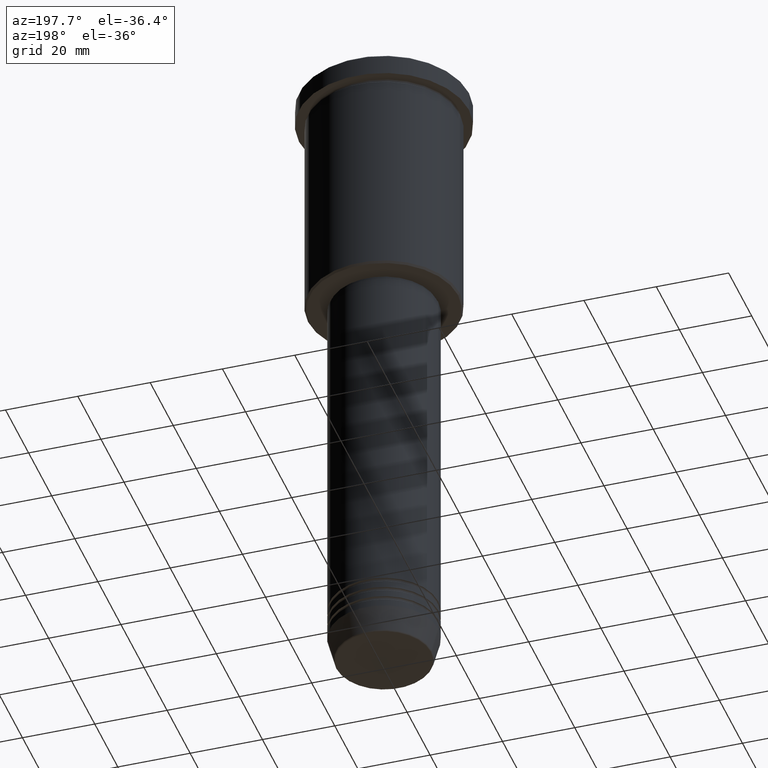
[diagram: clean part render]
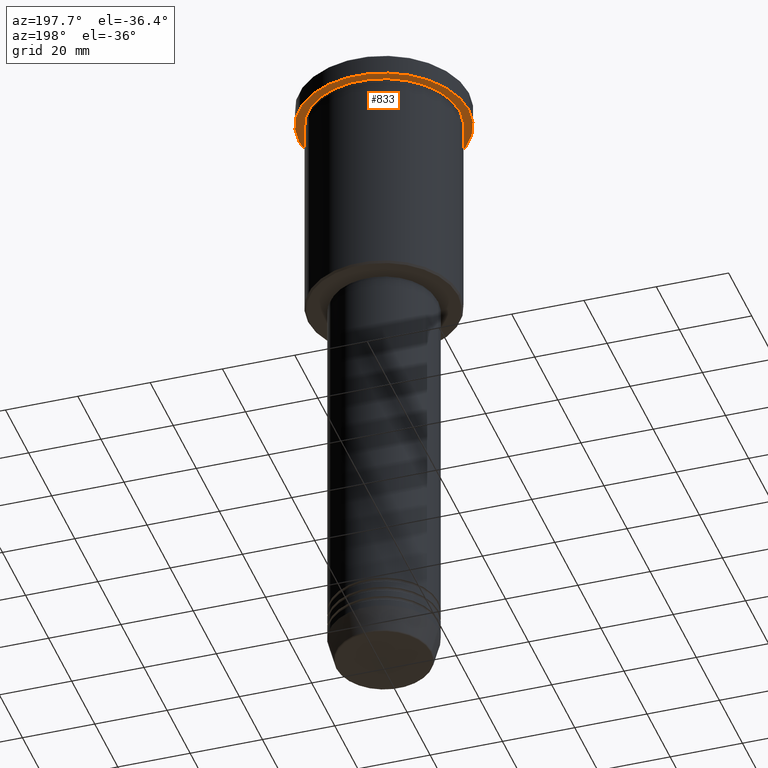
[diagram: same view with one face highlighted and labeled with its STEP entity id]
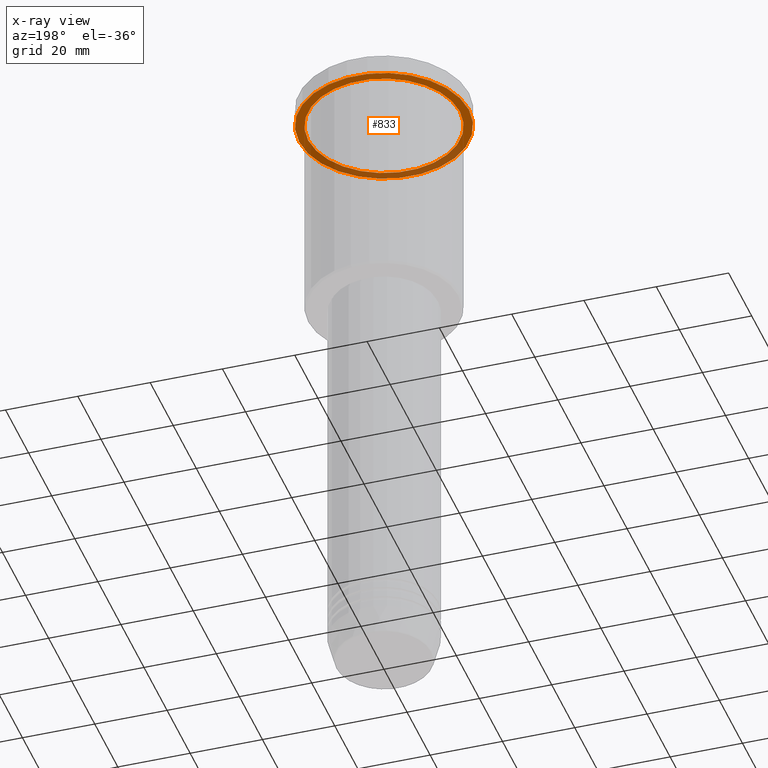
[diagram: x-ray of the same camera — body ghosted, the highlighted face saturated]
A machine part, auxiliary view. The second image highlights one B-rep face of the part: STEP entity #833.
The next image is the same camera in x-ray: the body ghosted, the highlighted face saturated — about 36% of this face is hidden behind the body in this view.
In plain terms, the highlighted planar face has unit normal (0, 0, -1).
Its self-contained STEP definition (entity closure, byte-faithful):
#9 = EDGE_CURVE ( 'NONE', #350, #212, #810, .T. ) ;
#35 = CARTESIAN_POINT ( 'NONE',  ( 21.00000000000000000, 2.571758278209441661E-15, -5.999999999999994671 ) ) ;
#44 = CARTESIAN_POINT ( 'NONE',  ( 0.000000000000000000, 0.000000000000000000, -5.999999999999994671 ) ) ;
#69 = FACE_BOUND ( 'NONE', #435, .T. ) ;
#75 = AXIS2_PLACEMENT_3D ( 'NONE', #641, #106, #546 ) ;
#76 = AXIS2_PLACEMENT_3D ( 'NONE', #1023, #189, #746 ) ;
#94 = DIRECTION ( 'NONE',  ( -1.000000000000000000, 0.000000000000000000, 0.000000000000000000 ) ) ;
#99 = EDGE_CURVE ( 'NONE', #1118, #124, #827, .T. ) ;
#106 = DIRECTION ( 'NONE',  ( -0.000000000000000000, -0.000000000000000000, 1.000000000000000000 ) ) ;
#124 = VERTEX_POINT ( 'NONE', #206 ) ;
#164 = EDGE_LOOP ( 'NONE', ( #942, #1038 ) ) ;
#189 = DIRECTION ( 'NONE',  ( -0.000000000000000000, -0.000000000000000000, 1.000000000000000000 ) ) ;
#206 = CARTESIAN_POINT ( 'NONE',  ( -21.00000000000000000, 0.000000000000000000, -5.999999999999994671 ) ) ;
#212 = VERTEX_POINT ( 'NONE', #1145 ) ;
#214 = DIRECTION ( 'NONE',  ( -1.000000000000000000, 0.000000000000000000, 0.000000000000000000 ) ) ;
#233 = CIRCLE ( 'NONE', #793, 21.00000000000000000 ) ;
#286 = CIRCLE ( 'NONE', #75, 23.50000000000000000 ) ;
#350 = VERTEX_POINT ( 'NONE', #622 ) ;
#351 = FACE_OUTER_BOUND ( 'NONE', #164, .T. ) ;
#435 = EDGE_LOOP ( 'NONE', ( #750, #716 ) ) ;
#487 = AXIS2_PLACEMENT_3D ( 'NONE', #1054, #979, #525 ) ;
#525 = DIRECTION ( 'NONE',  ( -1.000000000000000000, 0.000000000000000000, -0.000000000000000000 ) ) ;
#546 = DIRECTION ( 'NONE',  ( 1.000000000000000000, 0.000000000000000000, 0.000000000000000000 ) ) ;
#622 = CARTESIAN_POINT ( 'NONE',  ( -23.50000000000000000, 2.877919977996280320E-15, -5.999999999999994671 ) ) ;
#641 = CARTESIAN_POINT ( 'NONE',  ( 0.000000000000000000, 0.000000000000000000, -5.999999999999994671 ) ) ;
#716 = ORIENTED_EDGE ( 'NONE', *, *, #99, .T. ) ;
#746 = DIRECTION ( 'NONE',  ( 1.000000000000000000, 0.000000000000000000, 0.000000000000000000 ) ) ;
#750 = ORIENTED_EDGE ( 'NONE', *, *, #1140, .T. ) ;
#763 = DIRECTION ( 'NONE',  ( -0.000000000000000000, -0.000000000000000000, 1.000000000000000000 ) ) ;
#793 = AXIS2_PLACEMENT_3D ( 'NONE', #44, #1020, #214 ) ;
#810 = CIRCLE ( 'NONE', #76, 23.50000000000000000 ) ;
#827 = CIRCLE ( 'NONE', #874, 21.00000000000000000 ) ;
#833 = ADVANCED_FACE ( 'NONE', ( #69, #351 ), #1172, .T. ) ;
#874 = AXIS2_PLACEMENT_3D ( 'NONE', #921, #763, #94 ) ;
#921 = CARTESIAN_POINT ( 'NONE',  ( 0.000000000000000000, 0.000000000000000000, -5.999999999999994671 ) ) ;
#940 = EDGE_CURVE ( 'NONE', #212, #350, #286, .T. ) ;
#942 = ORIENTED_EDGE ( 'NONE', *, *, #940, .F. ) ;
#979 = DIRECTION ( 'NONE',  ( 0.000000000000000000, 0.000000000000000000, -1.000000000000000000 ) ) ;
#1020 = DIRECTION ( 'NONE',  ( -0.000000000000000000, -0.000000000000000000, 1.000000000000000000 ) ) ;
#1023 = CARTESIAN_POINT ( 'NONE',  ( 0.000000000000000000, 0.000000000000000000, -5.999999999999994671 ) ) ;
#1038 = ORIENTED_EDGE ( 'NONE', *, *, #9, .F. ) ;
#1054 = CARTESIAN_POINT ( 'NONE',  ( 0.000000000000000000, 23.50000000000000000, -5.999999999999994671 ) ) ;
#1118 = VERTEX_POINT ( 'NONE', #35 ) ;
#1140 = EDGE_CURVE ( 'NONE', #124, #1118, #233, .T. ) ;
#1145 = CARTESIAN_POINT ( 'NONE',  ( 23.50000000000000000, 0.000000000000000000, -5.999999999999994671 ) ) ;
#1172 = PLANE ( 'NONE',  #487 ) ;